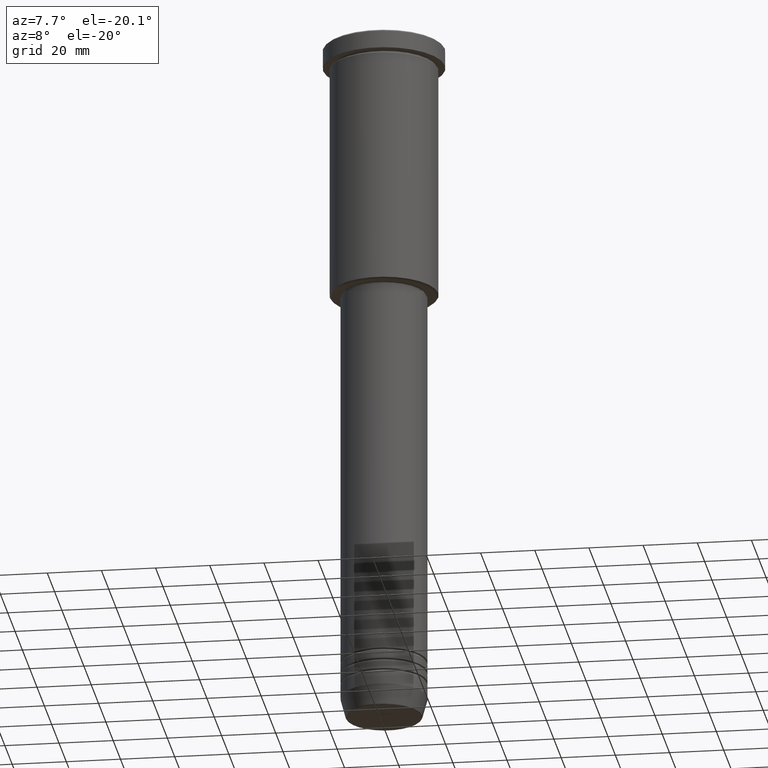
[diagram: clean part render]
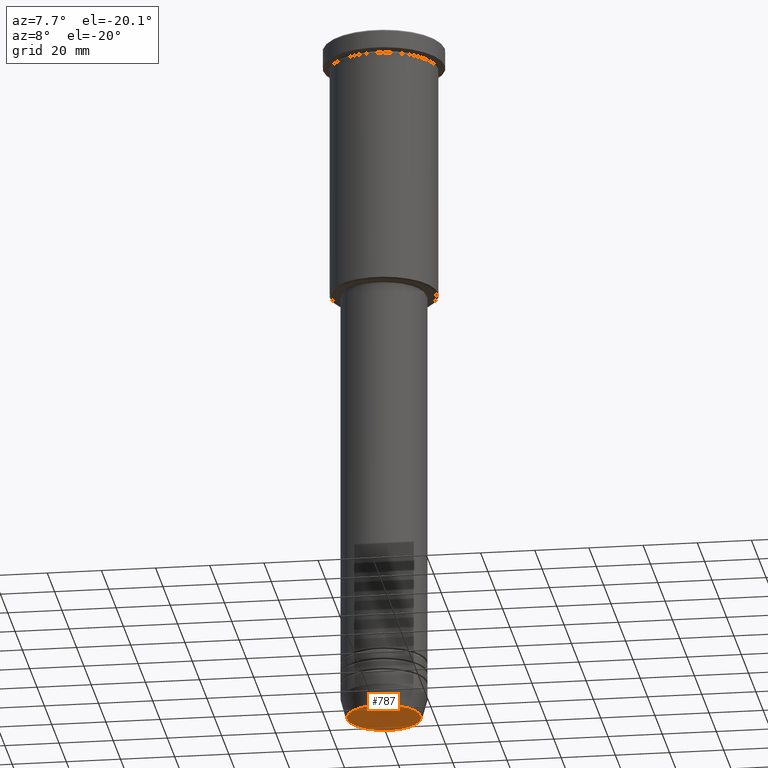
[diagram: same view with one face highlighted and labeled with its STEP entity id]
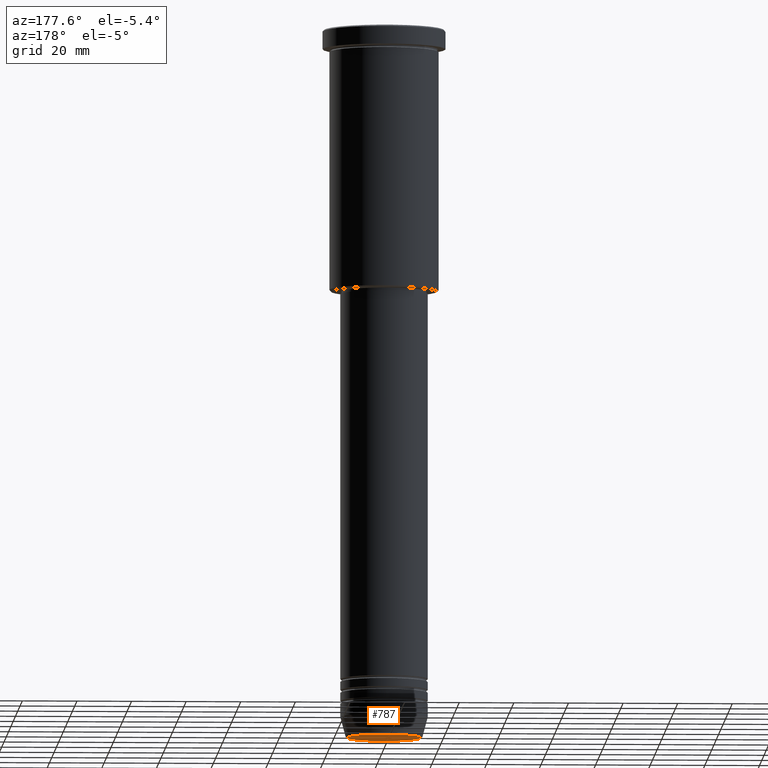
[diagram: same view with one face highlighted and labeled with its STEP entity id]
A machine part, auxiliary view. The second image highlights one B-rep face of the part: STEP entity #787.
A second angle (auxiliary view) of the same face is appended — the face is thin or edge-on in the first view.
In plain terms, the highlighted planar face has unit normal (0, -0, 1).
Its self-contained STEP definition (entity closure, byte-faithful):
#13 = PLANE ( 'NONE',  #726 ) ;
#64 = CARTESIAN_POINT ( 'NONE',  ( 0.000000000000000000, 0.000000000000000000, -260.0000000000000000 ) ) ;
#87 = CIRCLE ( 'NONE', #996, 13.60671756277709399 ) ;
#139 = EDGE_CURVE ( 'NONE', #552, #784, #236, .T. ) ;
#185 = CARTESIAN_POINT ( 'NONE',  ( -13.60671756277709399, 1.695915260300171258E-15, -260.0000000000000000 ) ) ;
#188 = DIRECTION ( 'NONE',  ( 1.000000000000000000, 0.000000000000000000, 0.000000000000000000 ) ) ;
#204 = ORIENTED_EDGE ( 'NONE', *, *, #139, .T. ) ;
#236 = CIRCLE ( 'NONE', #819, 13.60671756277709399 ) ;
#317 = DIRECTION ( 'NONE',  ( 0.000000000000000000, 0.000000000000000000, -1.000000000000000000 ) ) ;
#460 = FACE_OUTER_BOUND ( 'NONE', #777, .T. ) ;
#521 = DIRECTION ( 'NONE',  ( 1.000000000000000000, 0.000000000000000000, 0.000000000000000000 ) ) ;
#552 = VERTEX_POINT ( 'NONE', #1004 ) ;
#726 = AXIS2_PLACEMENT_3D ( 'NONE', #1016, #753, #188 ) ;
#737 = EDGE_CURVE ( 'NONE', #784, #552, #87, .T. ) ;
#753 = DIRECTION ( 'NONE',  ( 0.000000000000000000, -0.000000000000000000, 1.000000000000000000 ) ) ;
#777 = EDGE_LOOP ( 'NONE', ( #204, #1020 ) ) ;
#784 = VERTEX_POINT ( 'NONE', #185 ) ;
#787 = ADVANCED_FACE ( 'NONE', ( #460 ), #13, .F. ) ;
#819 = AXIS2_PLACEMENT_3D ( 'NONE', #982, #317, #521 ) ;
#982 = CARTESIAN_POINT ( 'NONE',  ( 0.000000000000000000, 0.000000000000000000, -260.0000000000000000 ) ) ;
#996 = AXIS2_PLACEMENT_3D ( 'NONE', #64, #1021, #1093 ) ;
#1004 = CARTESIAN_POINT ( 'NONE',  ( 13.60671756277709399, 0.000000000000000000, -260.0000000000000000 ) ) ;
#1016 = CARTESIAN_POINT ( 'NONE',  ( 0.000000000000000000, 0.000000000000000000, -260.0000000000000000 ) ) ;
#1020 = ORIENTED_EDGE ( 'NONE', *, *, #737, .T. ) ;
#1021 = DIRECTION ( 'NONE',  ( 0.000000000000000000, 0.000000000000000000, -1.000000000000000000 ) ) ;
#1093 = DIRECTION ( 'NONE',  ( 1.000000000000000000, 0.000000000000000000, 0.000000000000000000 ) ) ;